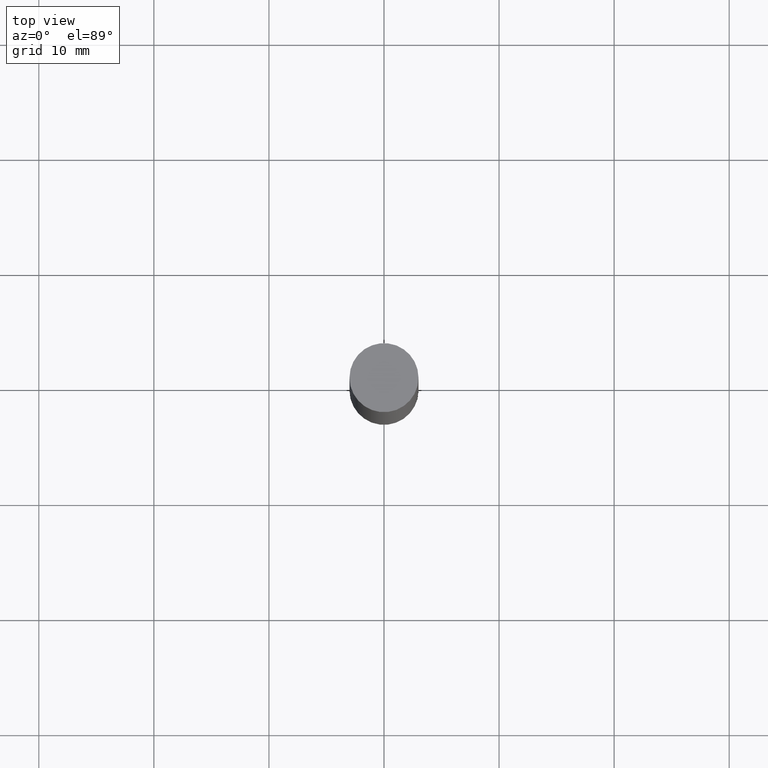
[diagram: clean part render]
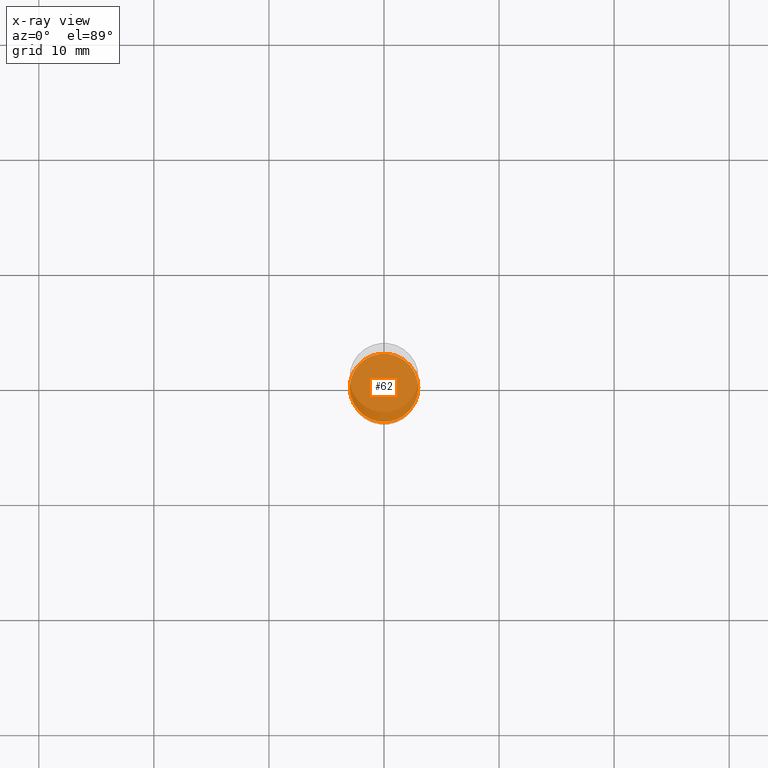
[diagram: x-ray — body ghosted, one internal face saturated and labeled with its STEP entity id]
A machine part, top view, then the same camera in x-ray: the body is ghosted and one INTERNAL B-rep face — a face not visible from any outside direction — is saturated and labeled: STEP entity #62.
In plain terms, the highlighted planar face has unit normal (-0, 0, 1).
Its self-contained STEP definition (entity closure, byte-faithful):
#24 = CARTESIAN_POINT ( 'NONE',  ( 4.910256815939135870E-29, -7.010545380263151710E-15, -2.007899999999999796 ) ) ;
#32 = EDGE_CURVE ( 'NONE', #351, #80, #539, .T. ) ;
#62 = ADVANCED_FACE ( 'NONE', ( #248 ), #284, .F. ) ;
#80 = VERTEX_POINT ( 'NONE', #327 ) ;
#111 = EDGE_CURVE ( 'NONE', #80, #351, #434, .T. ) ;
#127 = DIRECTION ( 'NONE',  ( 1.000000000000000000, -6.982962677686264344E-15, 0.000000000000000000 ) ) ;
#130 = EDGE_LOOP ( 'NONE', ( #501, #545 ) ) ;
#181 = DIRECTION ( 'NONE',  ( -2.438088387897960049E-29, 3.491481338843145188E-15, 1.000000000000000000 ) ) ;
#242 = AXIS2_PLACEMENT_3D ( 'NONE', #24, #660, #127 ) ;
#248 = FACE_OUTER_BOUND ( 'NONE', #130, .T. ) ;
#284 = PLANE ( 'NONE',  #473 ) ;
#287 = CARTESIAN_POINT ( 'NONE',  ( 4.910256815939136430E-29, -7.010545380263152499E-15, -2.007900000000000240 ) ) ;
#327 = CARTESIAN_POINT ( 'NONE',  ( -0.1170999999999999958, -6.173201382339852908E-15, -2.007899999999999796 ) ) ;
#351 = VERTEX_POINT ( 'NONE', #560 ) ;
#434 = CIRCLE ( 'NONE', #609, 0.1170999999999999958 ) ;
#438 = CARTESIAN_POINT ( 'NONE',  ( 4.910256815939135870E-29, -7.010545380263151710E-15, -2.007899999999999796 ) ) ;
#473 = AXIS2_PLACEMENT_3D ( 'NONE', #287, #181, #604 ) ;
#487 = DIRECTION ( 'NONE',  ( -2.445468806185136597E-29, 3.491481338843145583E-15, 1.000000000000000000 ) ) ;
#501 = ORIENTED_EDGE ( 'NONE', *, *, #32, .F. ) ;
#539 = CIRCLE ( 'NONE', #242, 0.1170999999999999958 ) ;
#545 = ORIENTED_EDGE ( 'NONE', *, *, #111, .F. ) ;
#560 = CARTESIAN_POINT ( 'NONE',  ( 0.1170999999999999958, -7.828250309820213170E-15, -2.007899999999999796 ) ) ;
#604 = DIRECTION ( 'NONE',  ( 1.000000000000000000, -6.982962677686265922E-15, 4.876176775795935793E-29 ) ) ;
#609 = AXIS2_PLACEMENT_3D ( 'NONE', #438, #487, #650 ) ;
#650 = DIRECTION ( 'NONE',  ( 1.000000000000000000, -6.982962677686264344E-15, 0.000000000000000000 ) ) ;
#660 = DIRECTION ( 'NONE',  ( -2.445468806185136597E-29, 3.491481338843145583E-15, 1.000000000000000000 ) ) ;